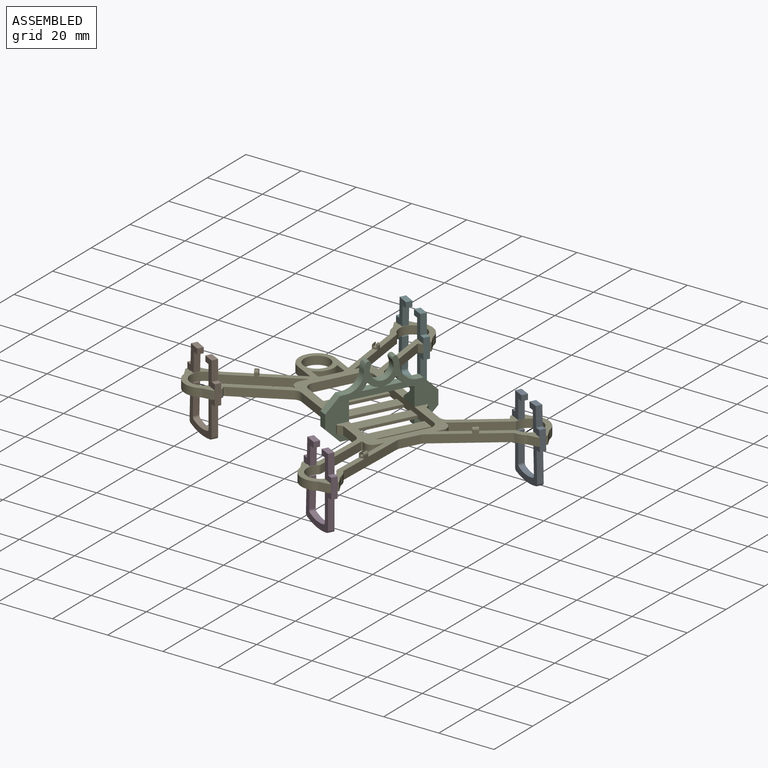
[diagram: assembled view]
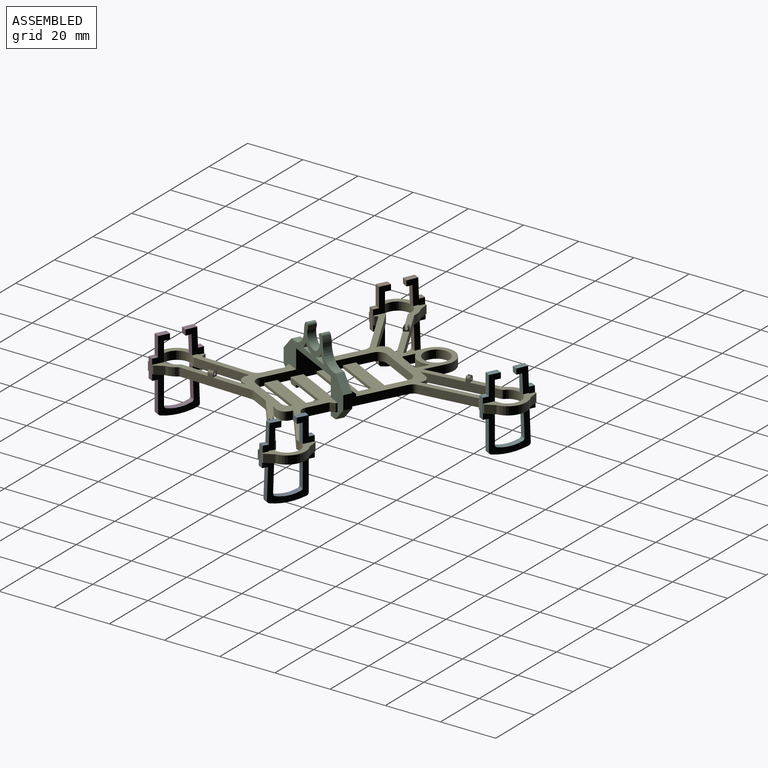
[diagram: assembled view, second angle]
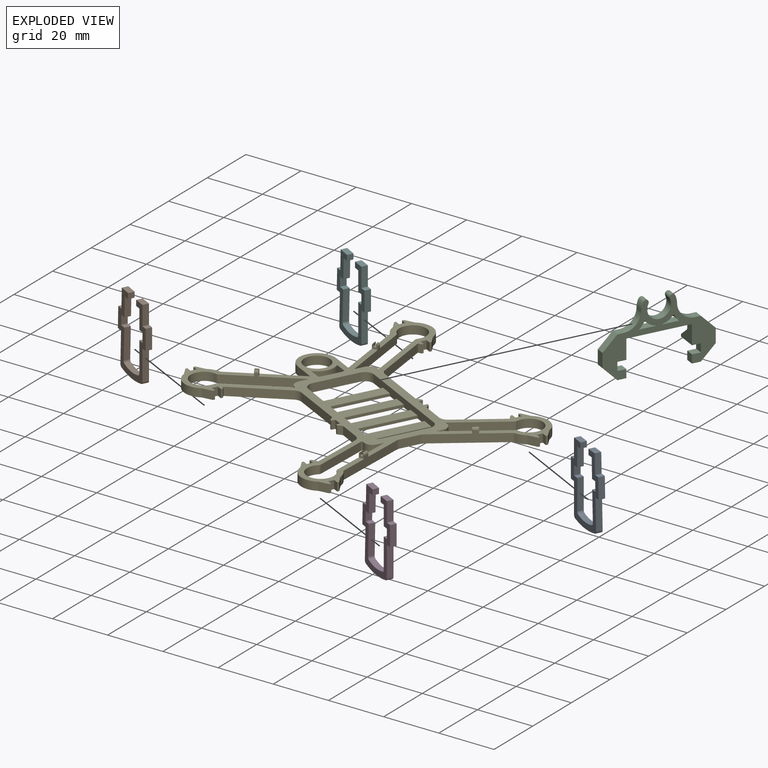
[diagram: exploded view]
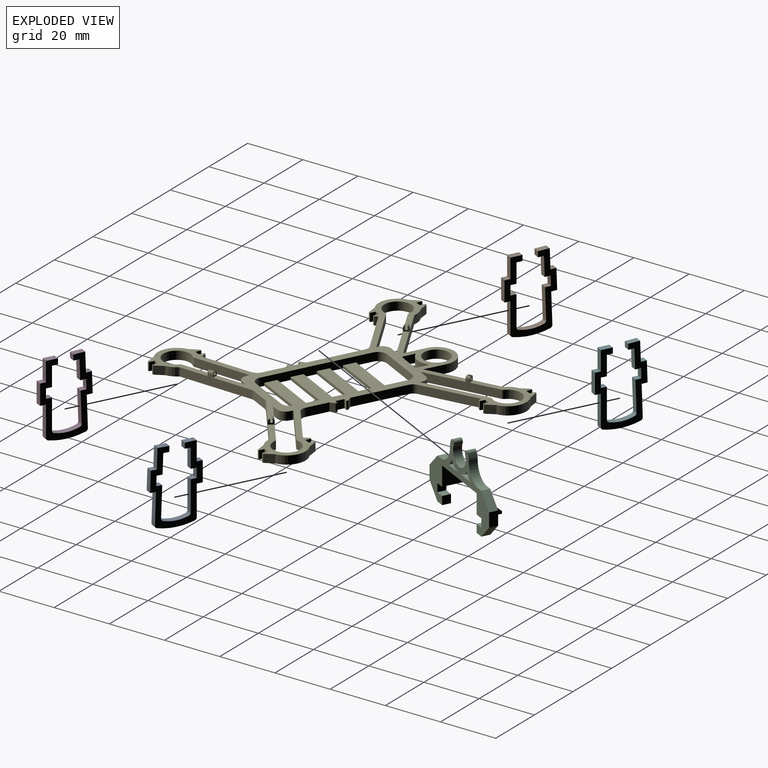
[diagram: exploded view, second angle]
ASSEMBLY  parts=6 mates=5
PART A: 36 faces, bbox 27.1x17.7x2.2 mm
  f0: plane 27.07x17.66mm, normal (0,0,-1), area 151.1mm2, adj f1,f2,f3,f4,f5,f6,f7,f8
  f1: plane 7.28x2.2mm, normal (0.02,1,0), area 16mm2, adj f0,f2,f30,f35
  f2: plane 2.2x2mm, normal (-1,0.02,0), area 4.4mm2, adj f0,f1,f3,f35
  f3: plane 10.95x2.2mm, normal (0.02,1,0), area 24.1mm2, adj f0,f2,f4,f35
  f4: cylinder r=1mm len=2.2mm, axis (0,0,-1), area 2.9mm2, adj f0,f3,f5,f35
  f5: cylinder r=23.58mm len=12.57mm, axis (0,0,-1), area 28mm2, adj f0,f4,f6,f35
  f6: cylinder r=1mm len=2.2mm, axis (0,0,-1), area 2.9mm2, adj f0,f5,f7,f35
  f7: plane 10.95x2.2mm, normal (0.02,-1,0), area 24.1mm2, adj f0,f6,f8,f35
  f8: plane 2.2x2mm, normal (-1,-0.02,0), area 4.4mm2, adj f0,f7,f9,f35
  f9: plane 7.28x2.2mm, normal (0.02,-1,0), area 16mm2, adj f0,f8,f10,f35
  f10: plane 2.2x2mm, normal (1,0.02,0), area 4.4mm2, adj f0,f9,f11,f35
  f11: plane 7x2.2mm, normal (0.02,-1,0), area 15.4mm2, adj f0,f10,f12,f35
  f12: plane 4x2.2mm, normal (1,0.02,0), area 8.8mm2, adj f0,f11,f13,f35
  f13: plane 2.2x2mm, normal (-0.02,1,0), area 4.4mm2, adj f0,f12,f14,f35
  f14: plane 2.2x2mm, normal (-1,-0.02,0), area 4.4mm2, adj f0,f13,f15,f35
  f15: plane 7x2.2mm, normal (-0.02,1,0), area 15.4mm2, adj f0,f14,f16,f35
  f16: plane 2.2x2mm, normal (-1,-0.02,0), area 4.4mm2, adj f0,f15,f17,f35
  f17: plane 3x2.2mm, normal (-0.02,1,0), area 6.6mm2, adj f0,f16,f34,f35
  f18: plane 10.87x2.2mm, normal (-0.02,1,0), area 23.9mm2, adj f0,f19,f33,f35
  f19: cylinder r=1mm len=2.2mm, axis (0,0,-1), area 2.8mm2, adj f0,f18,f20,f35
  f20: cylinder r=14.17mm len=8.58mm, axis (0,0,-1), area 19.2mm2, adj f0,f19,f21,f35
  f21: cylinder r=1mm len=2.2mm, axis (0,0,-1), area 2.8mm2, adj f0,f20,f22,f35
  f22: plane 10.87x2.2mm, normal (-0.02,-1,0), area 23.9mm2, adj f0,f21,f31,f35
  f23: plane 3x2.2mm, normal (-0.02,-1,0), area 6.6mm2, adj f0,f24,f32,f35
  f24: plane 2.2x2mm, normal (-1,0.02,0), area 4.4mm2, adj f0,f23,f25,f35
  f25: plane 7x2.2mm, normal (-0.02,-1,0), area 15.4mm2, adj f0,f24,f26,f35
  f26: plane 2.2x2mm, normal (-1,0.02,0), area 4.4mm2, adj f0,f25,f27,f35
  f27: plane 2.2x2mm, normal (-0.02,-1,0), area 4.4mm2, adj f0,f26,f28,f35
  f28: plane 4x2.2mm, normal (1,-0.02,0), area 8.8mm2, adj f0,f27,f29,f35
  f29: plane 7x2.2mm, normal (0.02,1,0), area 15.4mm2, adj f0,f28,f30,f35
  f30: plane 2.2x2mm, normal (1,-0.02,0), area 4.4mm2, adj f0,f1,f29,f35
  f31: plane 2.2x1.99mm, normal (1,0,0), area 4.4mm2, adj f0,f22,f32,f35
  f32: plane 2.2x0.44mm, normal (0,-1,0), area 1mm2, adj f0,f23,f31,f35
  f33: plane 2.2x1.99mm, normal (1,0,0), area 4.4mm2, adj f0,f18,f34,f35
  f34: plane 2.2x0.44mm, normal (0,1,0), area 1mm2, adj f0,f17,f33,f35
  f35: plane 27.07x17.66mm, normal (0,0,1), area 151.1mm2, adj f1,f2,f3,f4,f5,f6,f7,f8
PART B: same geometry as A
PART C: 46 faces, bbox 24.2x38x7 mm
  f0: plane 38x24.22mm, normal (0,0,1), area 253.7mm2, adj f1,f2,f3,f4,f5,f6,f8,f9
  f1: plane 5x3mm, normal (0,-1,0), area 15mm2, adj f0,f21,f35,f37
  f2: plane 3x3mm, normal (1,0,0), area 9mm2, adj f0,f3,f21,f35
  f3: plane 3x3mm, normal (0,1,0), area 9mm2, adj f0,f2,f5,f21
  f4: plane 6.96x6.95mm, normal (0,1,0), area 30.5mm2, adj f0,f7,f12,f21,f39,f40,f41
  f5: plane 3x3mm, normal (-1,0,0), area 9mm2, adj f0,f3,f6,f21
  f6: plane 3x3mm, normal (0,1,0), area 9mm2, adj f0,f5,f7,f21
  f7: plane 6.95x3mm, normal (1,0,0), area 20.9mm2, adj f4,f6,f21,f38,f40
  f8: plane 3x3mm, normal (-1,0,0), area 9mm2, adj f0,f9,f21,f25
  f9: plane 3x3mm, normal (0,-1,0), area 9mm2, adj f0,f8,f10,f21
  f10: plane 6.95x3mm, normal (1,0,0), area 20.9mm2, adj f9,f21,f26,f44,f45
  f11: plane 3x2.5mm, normal (-1,0,0), area 7.5mm2, adj f0,f20,f21,f37
  f12: plane 22x3mm, normal (1,0,0), area 66mm2, adj f0,f4,f21,f26
  f13: cylinder r=4mm len=8mm, axis (0,0,-1), area 48.7mm2, adj f0,f14,f21,f27
  f14: cylinder r=1mm len=3mm, axis (0,0,-1), area 9.4mm2, adj f0,f13,f15,f21
  f15: cylinder r=6mm len=3mm, axis (0,0,-1), area 8.3mm2, adj f0,f14,f20,f21
  f16: plane 5.71x3mm, normal (-1,0,0), area 17.1mm2, adj f0,f17,f19,f21
  f17: cylinder r=8.07mm len=3mm, axis (0,0,-1), area 9.3mm2, adj f0,f16,f18,f21
  f18: cylinder r=6mm len=3.82mm, axis (0,0,-1), area 13.8mm2, adj f0,f17,f19,f21
  f19: plane 3x0.09mm, normal (0,-1,0), area 0.3mm2, adj f0,f16,f18,f21
  f20: cylinder r=6.07mm len=6mm, axis (0,0,-1), area 26.8mm2, adj f0,f11,f15,f21
  f21: plane 38x24.22mm, normal (0,0,-1), area 280.5mm2, adj f1,f2,f3,f4,f5,f6,f7,f8
  f22: plane 3x2.5mm, normal (-1,0,0), area 7.5mm2, adj f0,f21,f33,f36
  f23: plane 5x3mm, normal (0,1,0), area 15mm2, adj f0,f21,f34,f36
  f24: plane 3x3mm, normal (1,0,0), area 9mm2, adj f0,f21,f25,f34
  f25: plane 3x3mm, normal (0,-1,0), area 9mm2, adj f0,f8,f21,f24
  f26: plane 6.96x6.95mm, normal (0,-1,0), area 30.5mm2, adj f0,f10,f12,f21,f42,f43,f44
  f27: cylinder r=1mm len=3mm, axis (0,0,-1), area 9.4mm2, adj f0,f13,f21,f28
  f28: cylinder r=6mm len=3mm, axis (0,0,-1), area 8.3mm2, adj f0,f21,f27,f33
  f29: plane 5.71x3mm, normal (-1,0,0), area 17.1mm2, adj f0,f21,f30,f32
  f30: cylinder r=8.07mm len=3mm, axis (0,0,-1), area 9.3mm2, adj f0,f21,f29,f31
  f31: cylinder r=6mm len=3.82mm, axis (0,0,-1), area 13.8mm2, adj f0,f21,f30,f32
  f32: plane 3x0.09mm, normal (0,1,0), area 0.3mm2, adj f0,f21,f29,f31
  f33: cylinder r=6.07mm len=6mm, axis (0,0,-1), area 26.8mm2, adj f0,f21,f22,f28
  f34: plane 5x5mm, normal (0.71,0.71,0), area 21.2mm2, adj f0,f21,f23,f24
  f35: plane 5x5mm, normal (0.71,-0.71,0), area 21.2mm2, adj f0,f1,f2,f21
  f36: plane 5x5mm, normal (-0.71,0.71,0), area 21.2mm2, adj f0,f21,f22,f23
  f37: plane 5x5mm, normal (-0.71,-0.71,0), area 21.2mm2, adj f0,f1,f11,f21
  f38: plane 4.48x3.95mm, normal (0,-1,0), area 9.6mm2, adj f0,f7,f39,f40,f41
  f39: plane 3.58x3mm, normal (-0.78,0,0.62), area 13.7mm2, adj f4,f38,f40,f41
  f40: plane 3x0.84mm, normal (0,0,1), area 2.5mm2, adj f4,f7,f38,f39
  f41: cylinder r=1mm len=3mm, axis (0,1,0), area 2.7mm2, adj f0,f4,f38,f39
  f42: plane 3.58x3mm, normal (-0.78,0,0.62), area 13.7mm2, adj f26,f43,f44,f45
  f43: cylinder r=1mm len=3mm, axis (0,-1,0), area 2.7mm2, adj f0,f26,f42,f45
  f44: plane 3x0.84mm, normal (0,0,1), area 2.5mm2, adj f10,f26,f42,f45
  f45: plane 4.48x3.95mm, normal (0,1,0), area 9.6mm2, adj f0,f10,f42,f43,f44
PART D: same geometry as A
PART E: 195 faces, bbox 83.7x91.7x4.9 mm
  f0: plane 19.48x3mm, normal (1,0,0), area 58.4mm2, adj f5,f8,f29,f106
  f1: plane 3x3mm, normal (1,0,0), area 9mm2, adj f5,f8,f102,f105
  f2: plane 1.92x1.8mm, normal (0.9,0.43,0), area 2.4mm2, adj f4,f5,f9,f50,f98,f99,f100,f101
  f3: plane 1.92x1.8mm, normal (-0.9,-0.43,0), area 2.4mm2, adj f4,f5,f9,f50,f98,f99,f100,f101
  f4: cylinder r=1mm len=2.06mm, axis (0.9,0.43,0), area 2.3mm2, adj f2,f3,f50,f100
  f5: plane 91.7x83.7mm, normal (0,0,1), area 1179.9mm2, adj f0,f1,f2,f3,f6,f9,f10,f11
  f6: plane 1.92x1.64mm, normal (-0.82,0.57,0), area 2.4mm2, adj f5,f7,f19,f56,f94,f95,f96,f97
  f7: cylinder r=1mm len=1.48mm, axis (0.82,-0.57,0), area 1.6mm2, adj f6,f19,f93,f96
  f8: plane 91.7x83.7mm, normal (0,0,-1), area 1580.7mm2, adj f0,f1,f9,f10,f11,f12,f13,f14
  f9: plane 21.16x10.16mm, normal (0.43,-0.9,0), area 72.4mm2, adj f2,f3,f5,f8,f10,f71,f98
  f10: cylinder r=1mm len=3mm, axis (0,0,-1), area 2.5mm2, adj f5,f8,f9,f11
  f11: cylinder r=4.85mm len=9.7mm, axis (0,0,-1), area 69.5mm2, adj f5,f8,f10,f12
  f12: cylinder r=1mm len=3mm, axis (0,0,-1), area 2.5mm2, adj f5,f8,f11,f13
  f13: plane 17.98x8.64mm, normal (-0.43,0.9,0), area 59.9mm2, adj f5,f8,f12,f14
  f14: cylinder r=0.33mm len=3mm, axis (0,0,-1), area 2mm2, adj f5,f8,f13,f15
  f15: plane 3x0.59mm, normal (1,0,0), area 1.8mm2, adj f5,f8,f14,f16
  f16: cylinder r=3mm len=3mm, axis (0,0,-1), area 14.1mm2, adj f5,f8,f15,f71
  f17: cylinder r=4.85mm len=9.7mm, axis (0,0,-1), area 67.9mm2, adj f5,f8,f18,f69
  f18: cylinder r=1mm len=3mm, axis (0,0,-1), area 2.1mm2, adj f5,f8,f17,f19
  f19: plane 22.33x15.49mm, normal (0.57,0.82,0), area 82.9mm2, adj f5,f6,f7,f8,f18,f20,f93
  f20: plane 3.42x3mm, normal (0,-1,0), area 10.2mm2, adj f5,f8,f19,f21
  f21: cylinder r=3mm len=3mm, axis (0,0,-1), area 14.1mm2, adj f5,f8,f20,f22
  f22: plane 3x0.4mm, normal (1,0,0), area 1.2mm2, adj f5,f8,f21,f23
  f23: plane 19.2x13.32mm, normal (-0.57,-0.82,0), area 70.1mm2, adj f5,f8,f22,f69
  f24: plane 3x2mm, normal (0,1,0), area 6mm2, adj f5,f8,f25,f70
  f25: plane 3x1.94mm, normal (1,0,0), area 5.8mm2, adj f5,f8,f24,f26
  f26: plane 3x0.66mm, normal (0,1,0), area 2mm2, adj f5,f8,f25,f27
  f27: plane 3x1.06mm, normal (-0.83,0.55,0), area 3.8mm2, adj f5,f8,f26,f28
  f28: plane 17.34x12.03mm, normal (0.57,0.82,0), area 63.3mm2, adj f5,f8,f27,f29
  f29: cylinder r=3mm len=3mm, axis (0,0,-1), area 8.7mm2, adj f0,f5,f8,f28
  f30: plane 7.9x3mm, normal (1,0,0), area 23.7mm2, adj f5,f8,f31,f104
  f31: cylinder r=3mm len=3mm, axis (0,0,-1), area 10.1mm2, adj f5,f8,f30,f32
  f32: plane 16.4x7.88mm, normal (0.43,-0.9,0), area 54.6mm2, adj f5,f8,f31,f33
  f33: plane 3x1.85mm, normal (-0.83,-0.55,0), area 6.7mm2, adj f5,f8,f32,f34
  f34: plane 3x0.66mm, normal (0,-1,0), area 2mm2, adj f5,f8,f33,f35
  f35: plane 3x1.94mm, normal (1,0,0), area 5.8mm2, adj f5,f8,f34,f36
  f36: plane 3x2mm, normal (0,-1,0), area 6mm2, adj f5,f8,f35,f37
  f37: plane 3x1.94mm, normal (-1,0,0), area 5.8mm2, adj f5,f8,f36,f38
  f38: plane 3x0.68mm, normal (0,-1,0), area 2mm2, adj f5,f8,f37,f39
  f39: plane 3.07x3mm, normal (0.83,-0.56,0), area 11.1mm2, adj f5,f8,f38,f40
  f40: cylinder r=6.85mm len=11.44mm, axis (0,0,-1), area 40.6mm2, adj f5,f8,f39,f41
  f41: plane 3.07x3mm, normal (0.83,0.56,0), area 11.1mm2, adj f5,f8,f40,f42
  f42: plane 3x0.68mm, normal (0,1,0), area 2mm2, adj f5,f8,f41,f43
  f43: plane 3x1.94mm, normal (-1,0,0), area 5.8mm2, adj f5,f8,f42,f44
  f44: plane 3x2mm, normal (0,1,0), area 6mm2, adj f5,f8,f43,f45
  f45: plane 3x1.94mm, normal (1,0,0), area 5.8mm2, adj f5,f8,f44,f46
  f46: plane 3x0.66mm, normal (0,1,0), area 2mm2, adj f5,f8,f45,f47
  f47: plane 3x3mm, normal (-0.83,0.55,0), area 10.8mm2, adj f5,f8,f46,f48
  f48: cylinder r=6.85mm len=3mm, axis (0,0,-1), area 12mm2, adj f5,f8,f47,f49
  f49: cylinder r=1mm len=3mm, axis (0,0,-1), area 2.1mm2, adj f5,f8,f48,f50
  f50: plane 23.58x11.33mm, normal (-0.43,0.9,0), area 80.5mm2, adj f2,f3,f4,f5,f8,f49,f51
  f51: cylinder r=3mm len=3mm, axis (0,0,-1), area 4mm2, adj f5,f8,f50,f52
  f52: plane 6.78x3mm, normal (0,1,0), area 20.4mm2, adj f5,f8,f51,f157
  f53: cylinder r=4.6mm len=9.2mm, axis (0,0,-1), area 86.7mm2, adj f5,f8
  f54: cylinder r=6.4mm len=12.8mm, axis (0,0,-1), area 60.3mm2, adj f5,f8,f55,f158
  f55: plane 7.79x3mm, normal (1,0,0), area 23.4mm2, adj f5,f8,f54,f56
  f56: plane 21.82x15.13mm, normal (-0.57,-0.82,0), area 81mm2, adj f5,f6,f8,f55,f57,f93,f95
  f57: cylinder r=1mm len=3mm, axis (0,0,-1), area 1.8mm2, adj f5,f8,f56,f58
  f58: cylinder r=6.85mm len=3.4mm, axis (0,0,-1), area 13.4mm2, adj f5,f8,f57,f59
  f59: plane 3x2.99mm, normal (-0.83,-0.55,0), area 10.8mm2, adj f5,f8,f58,f60
  f60: plane 3x0.66mm, normal (0,-1,0), area 2mm2, adj f5,f8,f59,f61
  f61: plane 3x1.94mm, normal (1,0,0), area 5.8mm2, adj f5,f8,f60,f62
  f62: plane 3x2mm, normal (0,-1,0), area 6mm2, adj f5,f8,f61,f63
  f63: plane 3x1.94mm, normal (-1,0,0), area 5.8mm2, adj f5,f8,f62,f64
  f64: plane 3x0.68mm, normal (0,-1,0), area 2mm2, adj f5,f8,f63,f65
  f65: plane 3.07x3mm, normal (0.83,-0.56,0), area 11.1mm2, adj f5,f8,f64,f66
  f66: cylinder r=6.85mm len=11.44mm, axis (0,0,-1), area 40.6mm2, adj f5,f8,f65,f67
  f67: plane 3.07x3mm, normal (0.83,0.56,0), area 11.1mm2, adj f5,f8,f66,f68
  f68: plane 3x0.68mm, normal (0,1,0), area 2mm2, adj f5,f8,f67,f70
  f69: cylinder r=1mm len=3mm, axis (0,0,-1), area 2.5mm2, adj f5,f8,f17,f23
  f70: plane 3x1.94mm, normal (-1,0,0), area 5.8mm2, adj f5,f8,f24,f68
  f71: plane 3x2.31mm, normal (0,1,0), area 6.9mm2, adj f5,f8,f9,f16
  f72: plane 22x1mm, normal (0,-1,0), area 22mm2, adj f8,f82,f88,f176
  f73: plane 16x3mm, normal (0,1,0), area 48mm2, adj f5,f8,f74,f175
  f74: cylinder r=3mm len=3mm, axis (0,0,1), area 14.1mm2, adj f5,f8,f73,f82
  f75: plane 22x1mm, normal (0,-1,0), area 22mm2, adj f8,f82,f87,f176
  f76: plane 22x1mm, normal (0,1,0), area 22mm2, adj f8,f82,f88,f176
  f77: plane 22x1mm, normal (0,1,0), area 22mm2, adj f8,f82,f87,f176
  f78: plane 22x1mm, normal (0,-1,0), area 22mm2, adj f8,f82,f86,f176
  f79: plane 22x1mm, normal (0,1,0), area 22mm2, adj f8,f82,f86,f176
  f80: plane 22x1mm, normal (0,-1,0), area 22mm2, adj f8,f82,f85,f176
  f81: plane 22x1mm, normal (0,1,0), area 22mm2, adj f8,f82,f85,f176
  f82: plane 38x3mm, normal (-1,0,0), area 96.4mm2, adj f5,f8,f72,f74,f75,f76,f77,f78
  f83: cylinder r=3mm len=3mm, axis (0,0,1), area 14.1mm2, adj f5,f8,f82,f84
  f84: plane 16x3mm, normal (0,-1,0), area 48mm2, adj f5,f8,f83,f177
  f85: plane 22x4.4mm, normal (0,0,1), area 96.8mm2, adj f80,f81,f82,f176
  f86: plane 22x4.4mm, normal (0,0,1), area 96.8mm2, adj f78,f79,f82,f176
  f87: plane 22x4.4mm, normal (0,0,1), area 96.8mm2, adj f75,f77,f82,f176
  f88: plane 22x4.4mm, normal (0,0,1), area 96.8mm2, adj f72,f76,f82,f176
  f89: cylinder r=6.4mm len=8.8mm, axis (0,0,1), area 29.1mm2, adj f5,f8,f90,f178
  f90: plane 4.47x3mm, normal (-1,0,0), area 13.4mm2, adj f5,f8,f89,f91
  f91: cylinder r=3mm len=3mm, axis (0,0,1), area 3.9mm2, adj f5,f8,f90,f92
  f92: plane 6.27x3mm, normal (0,-1,0), area 18.8mm2, adj f5,f8,f91,f179
  f93: plane 1.92x1.64mm, normal (0.82,-0.57,0), area 2.4mm2, adj f5,f7,f19,f56,f94,f95,f96,f97
  f94: cylinder r=0.5mm len=1.71mm, axis (0.82,-0.57,0), area 3.1mm2, adj f6,f93,f96,f97
  f95: cylinder r=1mm len=1.48mm, axis (0.82,-0.57,0), area 1.6mm2, adj f6,f56,f93,f97
  f96: plane 1.14x0.79mm, normal (-0.57,-0.82,0), area 0.9mm2, adj f6,f7,f93,f94
  f97: plane 1.14x0.79mm, normal (0.57,0.82,0), area 0.9mm2, adj f6,f93,f94,f95
  f98: cylinder r=1mm len=2.06mm, axis (0.9,0.43,0), area 2.3mm2, adj f2,f3,f9,f101
  f99: cylinder r=0.5mm len=2.24mm, axis (0.9,0.43,0), area 4.4mm2, adj f2,f3,f100,f101
  f100: plane 1.8x0.87mm, normal (0.43,-0.9,0), area 1.2mm2, adj f2,f3,f4,f99
  f101: plane 1.8x0.87mm, normal (-0.43,0.9,0), area 1.2mm2, adj f2,f3,f98,f99
  f102: plane 3x1.36mm, normal (0,-1,0), area 4.1mm2, adj f1,f5,f8,f103
  f103: plane 3x0.64mm, normal (1,0,0), area 1.9mm2, adj f5,f8,f102,f104
  f104: plane 3x1.36mm, normal (0.71,0.71,0), area 5.8mm2, adj f5,f8,f30,f103
  f105: plane 3x1.36mm, normal (0,1,0), area 4.1mm2, adj f1,f5,f8,f107
  f106: plane 3x1.36mm, normal (0.71,-0.71,0), area 5.8mm2, adj f0,f5,f8,f107
  f107: plane 3x0.64mm, normal (1,0,0), area 1.9mm2, adj f5,f8,f105,f106
  f108: plane 19.48x3mm, normal (-1,0,0), area 58.4mm2, adj f5,f8,f135,f193
  f109: plane 3x3mm, normal (-1,0,0), area 9mm2, adj f5,f8,f189,f192
  f110: plane 1.92x1.8mm, normal (-0.9,0.43,0), area 2.4mm2, adj f5,f112,f115,f156,f185,f186,f187,f188
  f111: plane 1.92x1.8mm, normal (0.9,-0.43,0), area 2.4mm2, adj f5,f112,f115,f156,f185,f186,f187,f188
  f112: cylinder r=1mm len=2.06mm, axis (-0.9,0.43,0), area 2.3mm2, adj f110,f111,f156,f187
  f113: plane 1.92x1.64mm, normal (0.82,0.57,0), area 2.4mm2, adj f5,f114,f125,f159,f181,f182,f183,f184
  f114: cylinder r=1mm len=1.48mm, axis (-0.82,-0.57,0), area 1.6mm2, adj f113,f125,f180,f183
  f115: plane 21.16x10.16mm, normal (-0.43,-0.9,0), area 72.4mm2, adj f5,f8,f110,f111,f116,f174,f185
  f116: cylinder r=1mm len=3mm, axis (0,0,-1), area 2.5mm2, adj f5,f8,f115,f117
  f117: cylinder r=4.85mm len=9.7mm, axis (0,0,-1), area 69.5mm2, adj f5,f8,f116,f118
  f118: cylinder r=1mm len=3mm, axis (0,0,-1), area 2.5mm2, adj f5,f8,f117,f119
  f119: plane 17.98x8.64mm, normal (0.43,0.9,0), area 59.9mm2, adj f5,f8,f118,f120
  f120: cylinder r=0.33mm len=3mm, axis (0,0,-1), area 2mm2, adj f5,f8,f119,f121
  f121: plane 3x0.59mm, normal (-1,0,0), area 1.8mm2, adj f5,f8,f120,f122
  f122: cylinder r=3mm len=3mm, axis (0,0,-1), area 14.1mm2, adj f5,f8,f121,f174
  f123: cylinder r=4.85mm len=9.7mm, axis (0,0,-1), area 67.9mm2, adj f5,f8,f124,f172
  f124: cylinder r=1mm len=3mm, axis (0,0,-1), area 2.1mm2, adj f5,f8,f123,f125
  f125: plane 22.33x15.49mm, normal (-0.57,0.82,0), area 82.9mm2, adj f5,f8,f113,f114,f124,f126,f180
  f126: plane 3.42x3mm, normal (0,-1,0), area 10.2mm2, adj f5,f8,f125,f127
  f127: cylinder r=3mm len=3mm, axis (0,0,-1), area 14.1mm2, adj f5,f8,f126,f128
  f128: plane 3x0.4mm, normal (-1,0,0), area 1.2mm2, adj f5,f8,f127,f129
  f129: plane 19.2x13.32mm, normal (0.57,-0.82,0), area 70.1mm2, adj f5,f8,f128,f172
  f130: plane 3x2mm, normal (0,1,0), area 6mm2, adj f5,f8,f131,f173
  f131: plane 3x1.94mm, normal (-1,0,0), area 5.8mm2, adj f5,f8,f130,f132
  f132: plane 3x0.66mm, normal (0,1,0), area 2mm2, adj f5,f8,f131,f133
  f133: plane 3x1.06mm, normal (0.83,0.55,0), area 3.8mm2, adj f5,f8,f132,f134
  f134: plane 17.34x12.03mm, normal (-0.57,0.82,0), area 63.3mm2, adj f5,f8,f133,f135
  f135: cylinder r=3mm len=3mm, axis (0,0,-1), area 8.7mm2, adj f5,f8,f108,f134
  f136: plane 7.9x3mm, normal (-1,0,0), area 23.7mm2, adj f5,f8,f137,f191
  f137: cylinder r=3mm len=3mm, axis (0,0,-1), area 10.1mm2, adj f5,f8,f136,f138
  f138: plane 16.4x7.88mm, normal (-0.43,-0.9,0), area 54.6mm2, adj f5,f8,f137,f139
  f139: plane 3x1.85mm, normal (0.83,-0.55,0), area 6.7mm2, adj f5,f8,f138,f140
  f140: plane 3x0.66mm, normal (0,-1,0), area 2mm2, adj f5,f8,f139,f141
  f141: plane 3x1.94mm, normal (-1,0,0), area 5.8mm2, adj f5,f8,f140,f142
  f142: plane 3x2mm, normal (0,-1,0), area 6mm2, adj f5,f8,f141,f143
  f143: plane 3x1.94mm, normal (1,0,0), area 5.8mm2, adj f5,f8,f142,f144
  f144: plane 3x0.68mm, normal (0,-1,0), area 2mm2, adj f5,f8,f143,f145
  f145: plane 3.07x3mm, normal (-0.83,-0.56,0), area 11.1mm2, adj f5,f8,f144,f146
  f146: cylinder r=6.85mm len=11.44mm, axis (0,0,-1), area 40.6mm2, adj f5,f8,f145,f147
  f147: plane 3.07x3mm, normal (-0.83,0.56,0), area 11.1mm2, adj f5,f8,f146,f148
  f148: plane 3x0.68mm, normal (0,1,0), area 2mm2, adj f5,f8,f147,f149
  f149: plane 3x1.94mm, normal (1,0,0), area 5.8mm2, adj f5,f8,f148,f150
  f150: plane 3x2mm, normal (0,1,0), area 6mm2, adj f5,f8,f149,f151
  f151: plane 3x1.94mm, normal (-1,0,0), area 5.8mm2, adj f5,f8,f150,f152
  f152: plane 3x0.66mm, normal (0,1,0), area 2mm2, adj f5,f8,f151,f153
  f153: plane 3x3mm, normal (0.83,0.55,0), area 10.8mm2, adj f5,f8,f152,f154
  f154: cylinder r=6.85mm len=3mm, axis (0,0,-1), area 12mm2, adj f5,f8,f153,f155
  f155: cylinder r=1mm len=3mm, axis (0,0,-1), area 2.1mm2, adj f5,f8,f154,f156
  f156: plane 23.58x11.33mm, normal (0.43,0.9,0), area 80.5mm2, adj f5,f8,f110,f111,f112,f155,f157
  f157: cylinder r=3mm len=3mm, axis (0,0,-1), area 4mm2, adj f5,f8,f52,f156
  f158: plane 7.79x3mm, normal (-1,0,0), area 23.4mm2, adj f5,f8,f54,f159
  f159: plane 21.82x15.13mm, normal (0.57,-0.82,0), area 81mm2, adj f5,f8,f113,f158,f160,f180,f182
  f160: cylinder r=1mm len=3mm, axis (0,0,-1), area 1.8mm2, adj f5,f8,f159,f161
  f161: cylinder r=6.85mm len=3.4mm, axis (0,0,-1), area 13.4mm2, adj f5,f8,f160,f162
  f162: plane 3x2.99mm, normal (0.83,-0.55,0), area 10.8mm2, adj f5,f8,f161,f163
  f163: plane 3x0.66mm, normal (0,-1,0), area 2mm2, adj f5,f8,f162,f164
  f164: plane 3x1.94mm, normal (-1,0,0), area 5.8mm2, adj f5,f8,f163,f165
  f165: plane 3x2mm, normal (0,-1,0), area 6mm2, adj f5,f8,f164,f166
  f166: plane 3x1.94mm, normal (1,0,0), area 5.8mm2, adj f5,f8,f165,f167
  f167: plane 3x0.68mm, normal (0,-1,0), area 2mm2, adj f5,f8,f166,f168
  f168: plane 3.07x3mm, normal (-0.83,-0.56,0), area 11.1mm2, adj f5,f8,f167,f169
  f169: cylinder r=6.85mm len=11.44mm, axis (0,0,-1), area 40.6mm2, adj f5,f8,f168,f170
  f170: plane 3.07x3mm, normal (-0.83,0.56,0), area 11.1mm2, adj f5,f8,f169,f171
  f171: plane 3x0.68mm, normal (0,1,0), area 2mm2, adj f5,f8,f170,f173
  f172: cylinder r=1mm len=3mm, axis (0,0,-1), area 2.5mm2, adj f5,f8,f123,f129
  f173: plane 3x1.94mm, normal (1,0,0), area 5.8mm2, adj f5,f8,f130,f171
  f174: plane 3x2.31mm, normal (0,1,0), area 6.9mm2, adj f5,f8,f115,f122
  f175: cylinder r=3mm len=3mm, axis (0,0,1), area 14.1mm2, adj f5,f8,f73,f176
  f176: plane 38x3mm, normal (1,0,0), area 96.4mm2, adj f5,f8,f72,f75,f76,f77,f78,f79
  f177: cylinder r=3mm len=3mm, axis (0,0,1), area 14.1mm2, adj f5,f8,f84,f176
  f178: plane 4.47x3mm, normal (1,0,0), area 13.4mm2, adj f5,f8,f89,f179
  f179: cylinder r=3mm len=3mm, axis (0,0,1), area 3.9mm2, adj f5,f8,f92,f178
  f180: plane 1.92x1.64mm, normal (-0.82,-0.57,0), area 2.4mm2, adj f5,f114,f125,f159,f181,f182,f183,f184
  f181: cylinder r=0.5mm len=1.71mm, axis (-0.82,-0.57,0), area 3.1mm2, adj f113,f180,f183,f184
  f182: cylinder r=1mm len=1.48mm, axis (-0.82,-0.57,0), area 1.6mm2, adj f113,f159,f180,f184
  f183: plane 1.14x0.79mm, normal (0.57,-0.82,0), area 0.9mm2, adj f113,f114,f180,f181
  f184: plane 1.14x0.79mm, normal (-0.57,0.82,0), area 0.9mm2, adj f113,f180,f181,f182
  f185: cylinder r=1mm len=2.06mm, axis (-0.9,0.43,0), area 2.3mm2, adj f110,f111,f115,f188
  f186: cylinder r=0.5mm len=2.24mm, axis (-0.9,0.43,0), area 4.4mm2, adj f110,f111,f187,f188
  f187: plane 1.8x0.87mm, normal (-0.43,-0.9,0), area 1.2mm2, adj f110,f111,f112,f186
  f188: plane 1.8x0.87mm, normal (0.43,0.9,0), area 1.2mm2, adj f110,f111,f185,f186
  f189: plane 3x1.36mm, normal (0,-1,0), area 4.1mm2, adj f5,f8,f109,f190
  f190: plane 3x0.64mm, normal (-1,0,0), area 1.9mm2, adj f5,f8,f189,f191
  f191: plane 3x1.36mm, normal (-0.71,0.71,0), area 5.8mm2, adj f5,f8,f136,f190
  f192: plane 3x1.36mm, normal (0,1,0), area 4.1mm2, adj f5,f8,f109,f194
  f193: plane 3x1.36mm, normal (-0.71,-0.71,0), area 5.8mm2, adj f5,f8,f108,f194
  f194: plane 3x0.64mm, normal (-1,0,0), area 1.9mm2, adj f5,f8,f192,f193
PART F: same geometry as A
PLACE A rot(axis=(0.45,-0.76,0.47),106.2deg) t=(59.03,79.82,33.56)mm
PLACE B rot(axis=(0.47,-0.76,0.46),105.3deg) t=(-38.49,51.29,33.73)mm
PLACE C rot(axis=(-0.7,0.17,0.7),160.8deg) t=(29.18,70.33,14.37)mm
PLACE D rot(axis=(0.47,-0.76,0.46),105.3deg) t=(27.42,17.37,33.73)mm
PLACE E rot(axis=(0,0,-1),117.2deg) t=(7.61,65.69,23.72)mm
PLACE F rot(axis=(0.47,-0.76,0.46),105.3deg) t=(-6.46,113.53,33.73)mm
MATE fastened D.f17 <-> E.f44  axis (-0.89,0.46,0) through (37.24,11.08,25.22)mm
MATE fastened A.f23 <-> E.f142  axis (0.89,-0.46,0) through (57.09,79.59,25.22)mm
MATE fastened F.f17 <-> E.f130  axis (-0.89,0.46,0) through (3.36,107.24,25.22)mm
MATE fastened C.f6 <-> E.f109  axis (-0.46,-0.89,0) through (27.85,71.02,25.22)mm
MATE fastened B.f17 <-> E.f24  axis (-0.89,0.46,0) through (-28.67,44.99,25.22)mm
